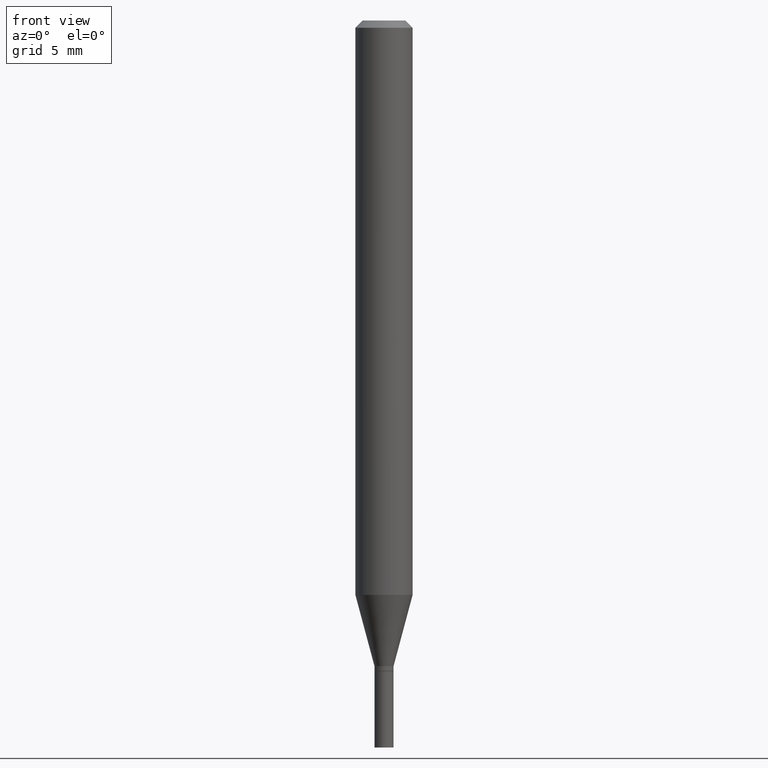
[diagram: clean part render]
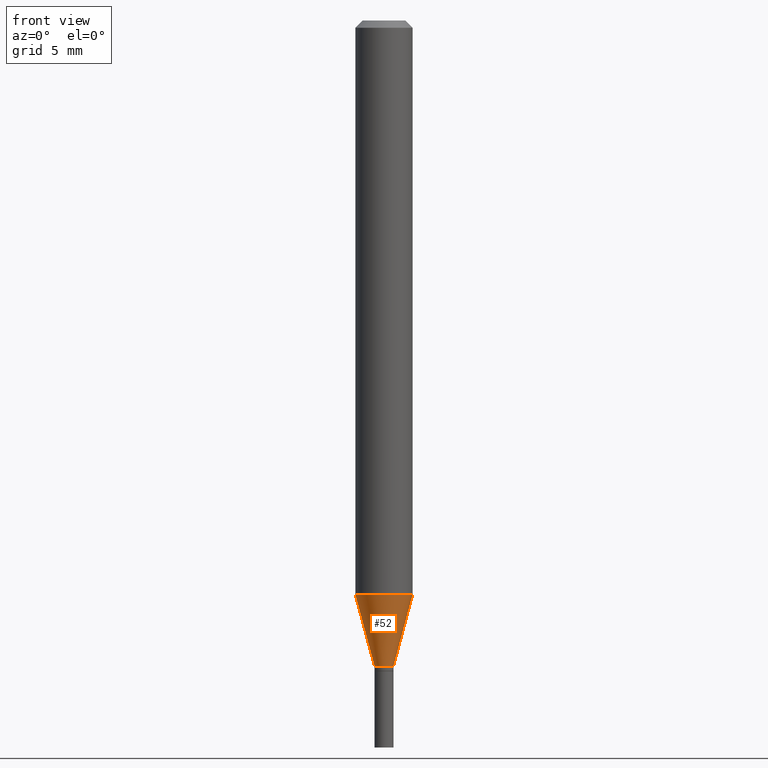
[diagram: same view with one face highlighted and labeled with its STEP entity id]
A machine part, front view. The second image highlights one B-rep face of the part: STEP entity #52.
In plain terms, the highlighted conical surface has half-angle 15 deg.
Its self-contained STEP definition (entity closure, byte-faithful):
#1 = DIRECTION ( 'NONE',  ( -2.445468806185136597E-29, 3.491481338843145583E-15, 1.000000000000000000 ) ) ;
#9 = DIRECTION ( 'NONE',  ( 1.000000000000000000, -6.982962677686270655E-15, 0.000000000000000000 ) ) ;
#16 = EDGE_CURVE ( 'NONE', #183, #369, #262, .T. ) ;
#26 = CARTESIAN_POINT ( 'NONE',  ( 0.05905000000000001914, -4.550251410184451334E-15, -1.185143800722164409 ) ) ;
#44 = VERTEX_POINT ( 'NONE', #328 ) ;
#52 = ADVANCED_FACE ( 'NONE', ( #259 ), #445, .T. ) ;
#60 = VECTOR ( 'NONE', #408, 39.37007874015748854 ) ;
#76 = CARTESIAN_POINT ( 'NONE',  ( 2.898232195509746702E-29, -4.137907464067076414E-15, -1.185143800722164409 ) ) ;
#78 = VERTEX_POINT ( 'NONE', #26 ) ;
#80 = CARTESIAN_POINT ( 'NONE',  ( 3.257364449838602072E-29, -4.650653143339069312E-15, -1.331999999999999851 ) ) ;
#83 = CARTESIAN_POINT ( 'NONE',  ( 0.01969999999999989468, -4.788217508089488526E-15, -1.331999999999999851 ) ) ;
#95 = AXIS2_PLACEMENT_3D ( 'NONE', #76, #181, #9 ) ;
#113 = CARTESIAN_POINT ( 'NONE',  ( 3.257364449838602072E-29, -4.650653143339069312E-15, -1.331999999999999851 ) ) ;
#131 = EDGE_CURVE ( 'NONE', #183, #44, #269, .T. ) ;
#138 = AXIS2_PLACEMENT_3D ( 'NONE', #113, #1, #139 ) ;
#139 = DIRECTION ( 'NONE',  ( 1.000000000000000000, -6.982962677686266711E-15, 0.000000000000000000 ) ) ;
#140 = ORIENTED_EDGE ( 'NONE', *, *, #226, .T. ) ;
#148 = DIRECTION ( 'NONE',  ( 0.2588190451025211836, 1.565188264969622559E-15, 0.9659258262890679791 ) ) ;
#149 = EDGE_LOOP ( 'NONE', ( #174, #454, #140, #270 ) ) ;
#174 = ORIENTED_EDGE ( 'NONE', *, *, #16, .F. ) ;
#181 = DIRECTION ( 'NONE',  ( -2.445468806185136597E-29, 3.491481338843145583E-15, 1.000000000000000000 ) ) ;
#183 = VERTEX_POINT ( 'NONE', #221 ) ;
#185 = CARTESIAN_POINT ( 'NONE',  ( -0.01969999999999989468, -4.510676224394330003E-15, -1.331999999999999851 ) ) ;
#192 = VECTOR ( 'NONE', #148, 39.37007874015748854 ) ;
#206 = AXIS2_PLACEMENT_3D ( 'NONE', #80, #220, #335 ) ;
#214 = EDGE_CURVE ( 'NONE', #369, #78, #341, .T. ) ;
#220 = DIRECTION ( 'NONE',  ( -2.445468806185136597E-29, 3.491481338843145583E-15, 1.000000000000000000 ) ) ;
#221 = CARTESIAN_POINT ( 'NONE',  ( -0.01969999999999989468, -4.114504101497534251E-15, -1.331999999999999851 ) ) ;
#226 = EDGE_CURVE ( 'NONE', #44, #78, #261, .T. ) ;
#259 = FACE_OUTER_BOUND ( 'NONE', #149, .T. ) ;
#261 = LINE ( 'NONE', #83, #192 ) ;
#262 = LINE ( 'NONE', #185, #60 ) ;
#269 = CIRCLE ( 'NONE', #138, 0.01969999999999989468 ) ;
#270 = ORIENTED_EDGE ( 'NONE', *, *, #214, .F. ) ;
#276 = CARTESIAN_POINT ( 'NONE',  ( -0.05905000000000001914, -3.718331978600737710E-15, -1.185143800722164409 ) ) ;
#328 = CARTESIAN_POINT ( 'NONE',  ( 0.01969999999999989468, -4.788217508089488526E-15, -1.331999999999999851 ) ) ;
#335 = DIRECTION ( 'NONE',  ( 1.000000000000000000, -6.982962677686266711E-15, 0.000000000000000000 ) ) ;
#341 = CIRCLE ( 'NONE', #95, 0.05905000000000001914 ) ;
#369 = VERTEX_POINT ( 'NONE', #276 ) ;
#408 = DIRECTION ( 'NONE',  ( -0.2588190451025211836, 5.211531920934547886E-15, 0.9659258262890679791 ) ) ;
#445 = CONICAL_SURFACE ( 'NONE', #206, 0.01969999999999989468, 0.2617993877991499074 ) ;
#454 = ORIENTED_EDGE ( 'NONE', *, *, #131, .T. ) ;